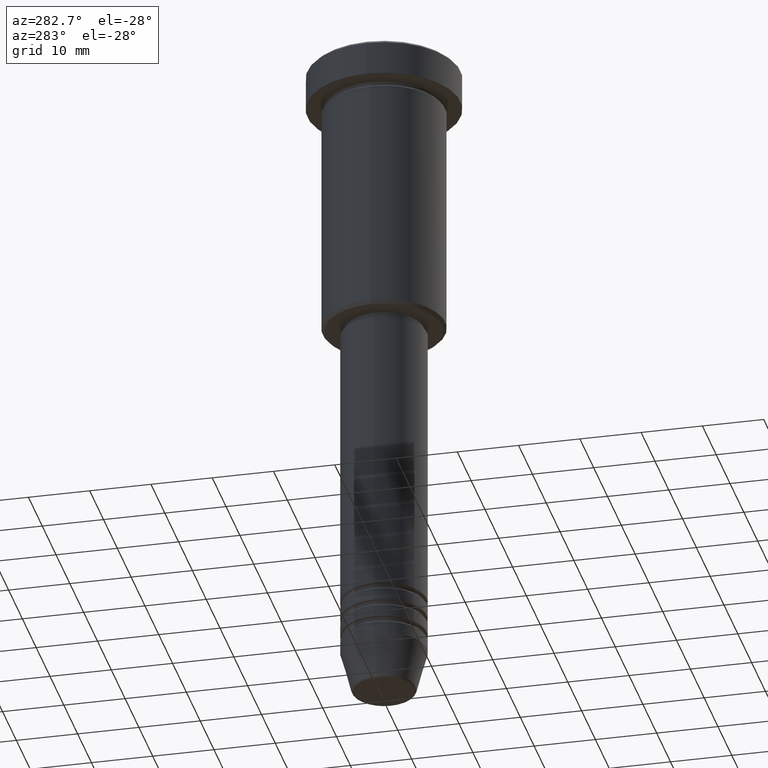
[diagram: clean part render]
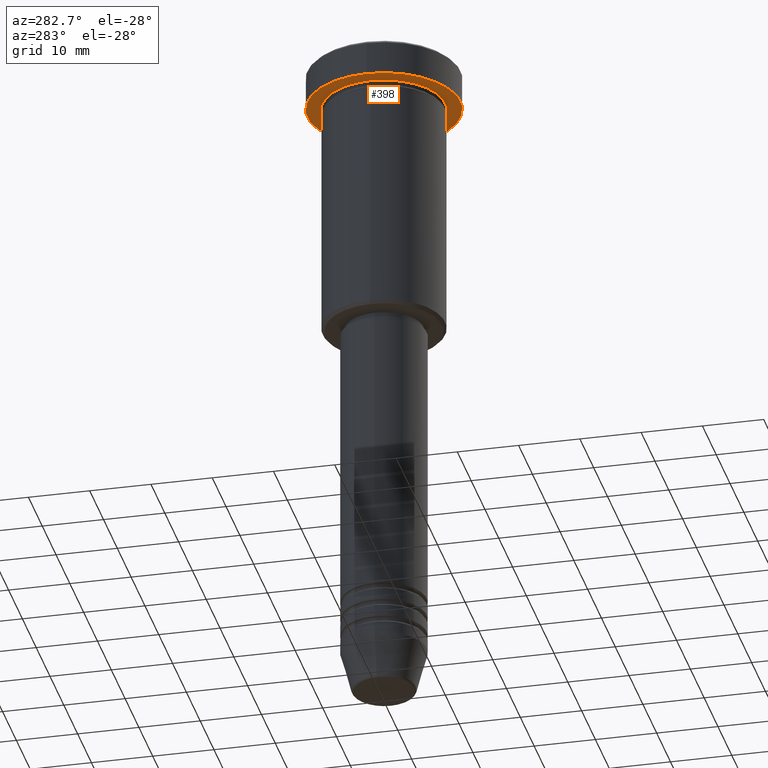
[diagram: same view with one face highlighted and labeled with its STEP entity id]
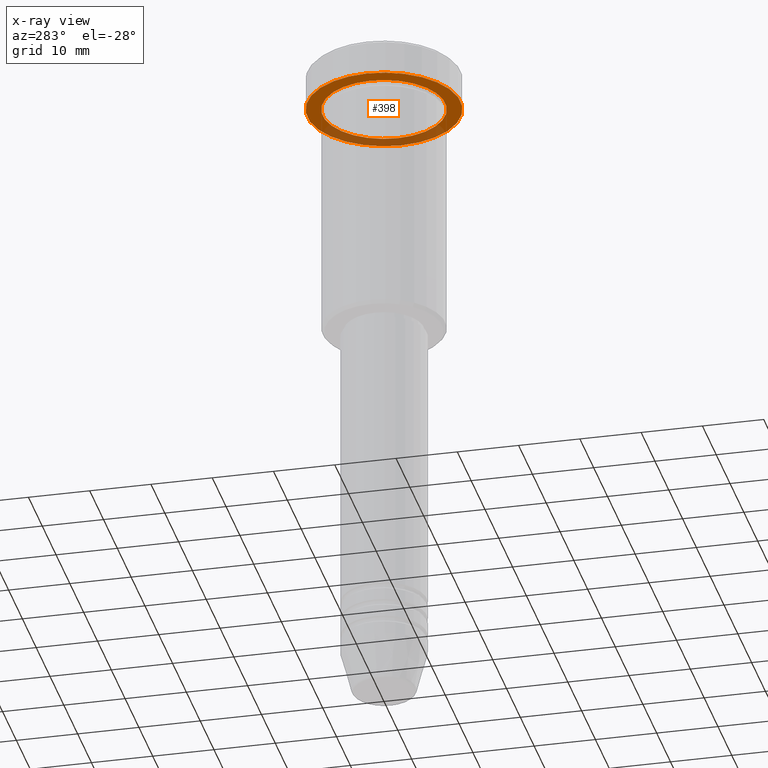
[diagram: x-ray of the same camera — body ghosted, the highlighted face saturated]
A machine part, auxiliary view. The second image highlights one B-rep face of the part: STEP entity #398.
The next image is the same camera in x-ray: the body ghosted, the highlighted face saturated — about 31% of this face is hidden behind the body in this view.
In plain terms, the highlighted planar face has unit normal (0, 0, -1).
Its self-contained STEP definition (entity closure, byte-faithful):
#11 = DIRECTION ( 'NONE',  ( -0.000000000000000000, -0.000000000000000000, 1.000000000000000000 ) ) ;
#68 = DIRECTION ( 'NONE',  ( -1.000000000000000000, 0.000000000000000000, -0.000000000000000000 ) ) ;
#74 = DIRECTION ( 'NONE',  ( 1.000000000000000000, 0.000000000000000000, 0.000000000000000000 ) ) ;
#140 = AXIS2_PLACEMENT_3D ( 'NONE', #299, #1033, #586 ) ;
#156 = CARTESIAN_POINT ( 'NONE',  ( 12.50000000000000000, 0.000000000000000000, -5.999999999999996447 ) ) ;
#212 = ORIENTED_EDGE ( 'NONE', *, *, #355, .F. ) ;
#239 = DIRECTION ( 'NONE',  ( 0.000000000000000000, 0.000000000000000000, -1.000000000000000000 ) ) ;
#247 = AXIS2_PLACEMENT_3D ( 'NONE', #326, #239, #68 ) ;
#265 = CIRCLE ( 'NONE', #863, 12.50000000000000000 ) ;
#285 = VERTEX_POINT ( 'NONE', #1085 ) ;
#293 = CARTESIAN_POINT ( 'NONE',  ( 0.000000000000000000, 0.000000000000000000, -5.999999999999996447 ) ) ;
#299 = CARTESIAN_POINT ( 'NONE',  ( 0.000000000000000000, 0.000000000000000000, -5.999999999999996447 ) ) ;
#316 = CARTESIAN_POINT ( 'NONE',  ( -10.00000000000000000, 0.000000000000000000, -5.999999999999996447 ) ) ;
#326 = CARTESIAN_POINT ( 'NONE',  ( 0.000000000000000000, 12.50000000000000000, -5.999999999999996447 ) ) ;
#355 = EDGE_CURVE ( 'NONE', #790, #640, #767, .T. ) ;
#398 = ADVANCED_FACE ( 'NONE', ( #1041, #579 ), #532, .T. ) ;
#435 = CARTESIAN_POINT ( 'NONE',  ( 0.000000000000000000, 0.000000000000000000, -5.999999999999996447 ) ) ;
#451 = ORIENTED_EDGE ( 'NONE', *, *, #504, .T. ) ;
#470 = DIRECTION ( 'NONE',  ( -1.000000000000000000, 0.000000000000000000, 0.000000000000000000 ) ) ;
#504 = EDGE_CURVE ( 'NONE', #285, #1177, #936, .T. ) ;
#512 = CARTESIAN_POINT ( 'NONE',  ( 0.000000000000000000, 0.000000000000000000, -5.999999999999996447 ) ) ;
#532 = PLANE ( 'NONE',  #247 ) ;
#553 = ORIENTED_EDGE ( 'NONE', *, *, #892, .T. ) ;
#579 = FACE_OUTER_BOUND ( 'NONE', #918, .T. ) ;
#586 = DIRECTION ( 'NONE',  ( 1.000000000000000000, 0.000000000000000000, 0.000000000000000000 ) ) ;
#612 = AXIS2_PLACEMENT_3D ( 'NONE', #293, #11, #1018 ) ;
#640 = VERTEX_POINT ( 'NONE', #969 ) ;
#767 = CIRCLE ( 'NONE', #140, 12.50000000000000000 ) ;
#790 = VERTEX_POINT ( 'NONE', #156 ) ;
#796 = DIRECTION ( 'NONE',  ( -0.000000000000000000, -0.000000000000000000, 1.000000000000000000 ) ) ;
#863 = AXIS2_PLACEMENT_3D ( 'NONE', #512, #796, #74 ) ;
#892 = EDGE_CURVE ( 'NONE', #1177, #285, #960, .T. ) ;
#918 = EDGE_LOOP ( 'NONE', ( #212, #1034 ) ) ;
#936 = CIRCLE ( 'NONE', #612, 10.00000000000000000 ) ;
#945 = DIRECTION ( 'NONE',  ( -0.000000000000000000, -0.000000000000000000, 1.000000000000000000 ) ) ;
#960 = CIRCLE ( 'NONE', #1107, 10.00000000000000000 ) ;
#969 = CARTESIAN_POINT ( 'NONE',  ( -12.50000000000000000, 1.530808498934191521E-15, -5.999999999999996447 ) ) ;
#1018 = DIRECTION ( 'NONE',  ( -1.000000000000000000, 0.000000000000000000, 0.000000000000000000 ) ) ;
#1033 = DIRECTION ( 'NONE',  ( -0.000000000000000000, -0.000000000000000000, 1.000000000000000000 ) ) ;
#1034 = ORIENTED_EDGE ( 'NONE', *, *, #1146, .F. ) ;
#1041 = FACE_BOUND ( 'NONE', #1045, .T. ) ;
#1045 = EDGE_LOOP ( 'NONE', ( #553, #451 ) ) ;
#1085 = CARTESIAN_POINT ( 'NONE',  ( 10.00000000000000000, 1.224646799147353256E-15, -5.999999999999996447 ) ) ;
#1107 = AXIS2_PLACEMENT_3D ( 'NONE', #435, #945, #470 ) ;
#1146 = EDGE_CURVE ( 'NONE', #640, #790, #265, .T. ) ;
#1177 = VERTEX_POINT ( 'NONE', #316 ) ;